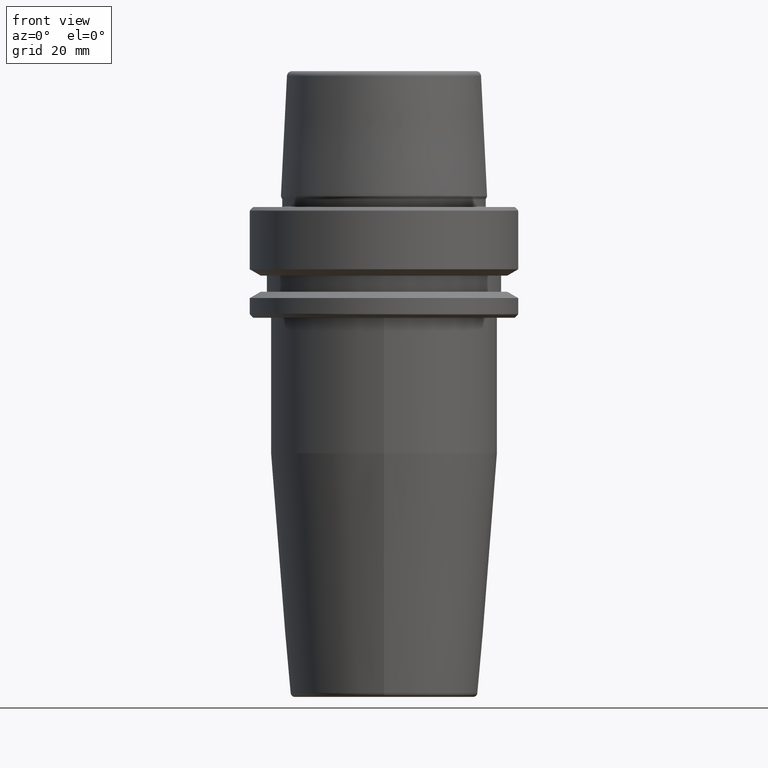
[diagram: clean part render]
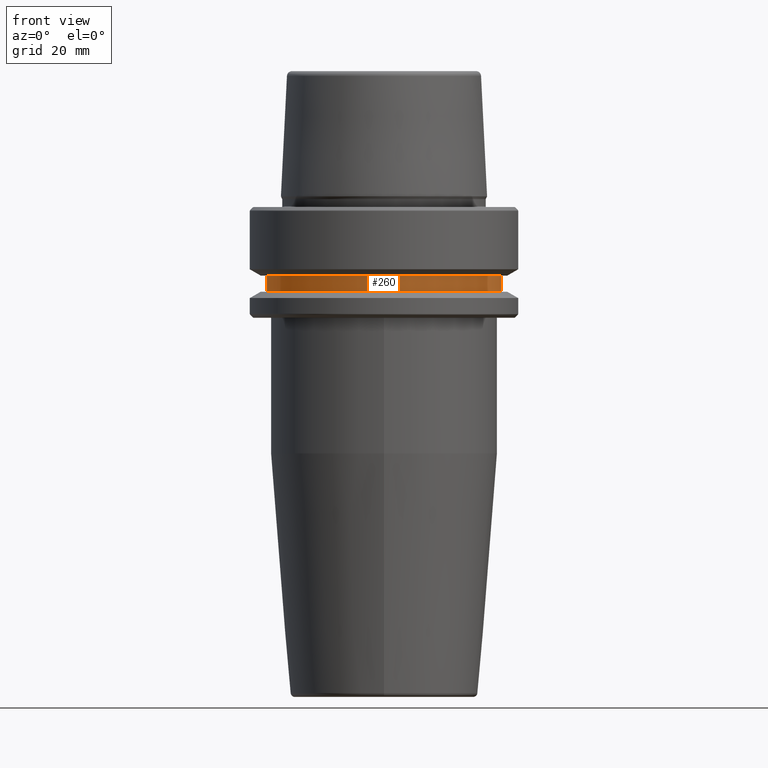
[diagram: same view with one face highlighted and labeled with its STEP entity id]
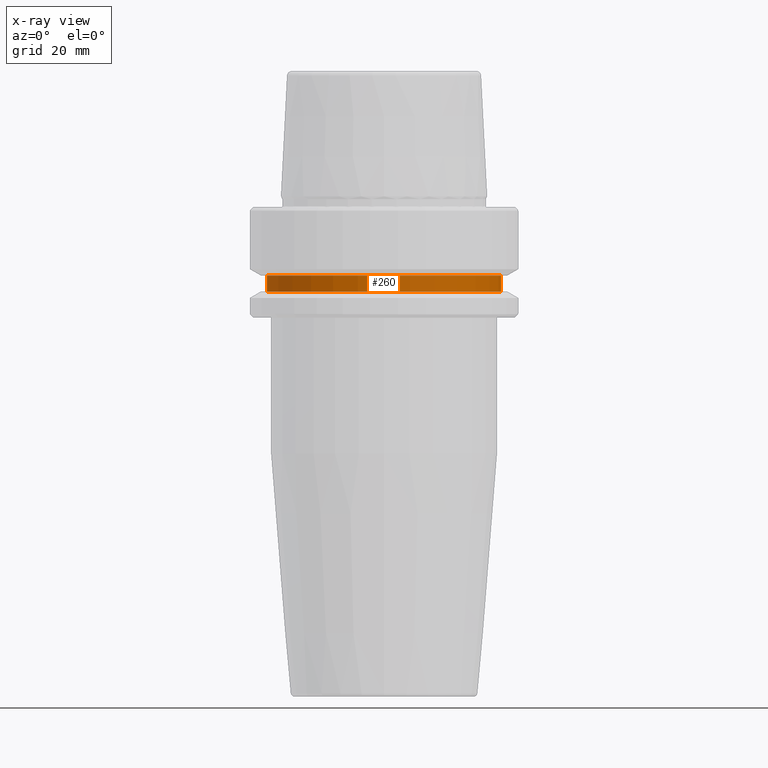
[diagram: x-ray of the same camera — body ghosted, the highlighted face saturated]
A machine part, front view. The second image highlights one B-rep face of the part: STEP entity #260.
The next image is the same camera in x-ray: the body ghosted, the highlighted face saturated — about 0% of this face is hidden behind the body in this view.
In plain terms, the highlighted cylindrical surface (partial cylindrical patch) has radius 27.5 mm, axis along (-0, -0, 1).
Its self-contained STEP definition (entity closure, byte-faithful):
#70 = CIRCLE ( 'NONE', #176, 27.49999999999999600 ) ;
#71 = VERTEX_POINT ( 'NONE', #734 ) ;
#76 = DIRECTION ( 'NONE',  ( -0.0000000000000000000, -0.0000000000000000000, 1.000000000000000000 ) ) ;
#82 = ORIENTED_EDGE ( 'NONE', *, *, #635, .F. ) ;
#136 = VERTEX_POINT ( 'NONE', #287 ) ;
#170 = CIRCLE ( 'NONE', #881, 27.49999999999999600 ) ;
#176 = AXIS2_PLACEMENT_3D ( 'NONE', #249, #931, #1219 ) ;
#179 = VERTEX_POINT ( 'NONE', #346 ) ;
#180 = CARTESIAN_POINT ( 'NONE',  ( 0.0000000000000000000, 0.0000000000000000000, -19.90000000000001600 ) ) ;
#201 = CYLINDRICAL_SURFACE ( 'NONE', #944, 27.49999999999999600 ) ;
#211 = LINE ( 'NONE', #664, #439 ) ;
#234 = FACE_OUTER_BOUND ( 'NONE', #511, .T. ) ;
#249 = CARTESIAN_POINT ( 'NONE',  ( 0.0000000000000000000, 0.0000000000000000000, -16.10000000000001600 ) ) ;
#260 = ADVANCED_FACE ( 'NONE', ( #234 ), #201, .T. ) ;
#273 = ORIENTED_EDGE ( 'NONE', *, *, #1117, .T. ) ;
#287 = CARTESIAN_POINT ( 'NONE',  ( 27.49999999999999600, 0.0000000000000000000, -19.90000000000001600 ) ) ;
#293 = EDGE_CURVE ( 'NONE', #71, #136, #170, .T. ) ;
#317 = CARTESIAN_POINT ( 'NONE',  ( 0.0000000000000000000, 0.0000000000000000000, 78.96908074195309300 ) ) ;
#346 = CARTESIAN_POINT ( 'NONE',  ( -27.49999999999999600, 3.367778697655220900E-015, -16.10000000000001600 ) ) ;
#365 = VECTOR ( 'NONE', #993, 1000.000000000000000 ) ;
#439 = VECTOR ( 'NONE', #609, 1000.000000000000000 ) ;
#511 = EDGE_LOOP ( 'NONE', ( #82, #983, #273, #755 ) ) ;
#609 = DIRECTION ( 'NONE',  ( -0.0000000000000000000, -0.0000000000000000000, 1.000000000000000000 ) ) ;
#617 = LINE ( 'NONE', #1106, #365 ) ;
#627 = DIRECTION ( 'NONE',  ( -0.0000000000000000000, -0.0000000000000000000, 1.000000000000000000 ) ) ;
#635 = EDGE_CURVE ( 'NONE', #71, #179, #211, .T. ) ;
#656 = DIRECTION ( 'NONE',  ( 1.000000000000000000, 0.0000000000000000000, 0.0000000000000000000 ) ) ;
#664 = CARTESIAN_POINT ( 'NONE',  ( -27.49999999999999600, 3.367778697655220900E-015, 78.96908074195309300 ) ) ;
#718 = VERTEX_POINT ( 'NONE', #895 ) ;
#734 = CARTESIAN_POINT ( 'NONE',  ( -27.49999999999999600, 3.367778697655220900E-015, -19.90000000000001600 ) ) ;
#755 = ORIENTED_EDGE ( 'NONE', *, *, #985, .F. ) ;
#787 = DIRECTION ( 'NONE',  ( 1.000000000000000000, 0.0000000000000000000, 0.0000000000000000000 ) ) ;
#881 = AXIS2_PLACEMENT_3D ( 'NONE', #180, #76, #656 ) ;
#895 = CARTESIAN_POINT ( 'NONE',  ( 27.49999999999999600, 0.0000000000000000000, -16.10000000000001600 ) ) ;
#931 = DIRECTION ( 'NONE',  ( -0.0000000000000000000, -0.0000000000000000000, 1.000000000000000000 ) ) ;
#944 = AXIS2_PLACEMENT_3D ( 'NONE', #317, #627, #787 ) ;
#983 = ORIENTED_EDGE ( 'NONE', *, *, #293, .T. ) ;
#985 = EDGE_CURVE ( 'NONE', #179, #718, #70, .T. ) ;
#993 = DIRECTION ( 'NONE',  ( -0.0000000000000000000, -0.0000000000000000000, 1.000000000000000000 ) ) ;
#1106 = CARTESIAN_POINT ( 'NONE',  ( 27.49999999999999600, 0.0000000000000000000, 78.96908074195309300 ) ) ;
#1117 = EDGE_CURVE ( 'NONE', #136, #718, #617, .T. ) ;
#1219 = DIRECTION ( 'NONE',  ( 1.000000000000000000, 0.0000000000000000000, 0.0000000000000000000 ) ) ;